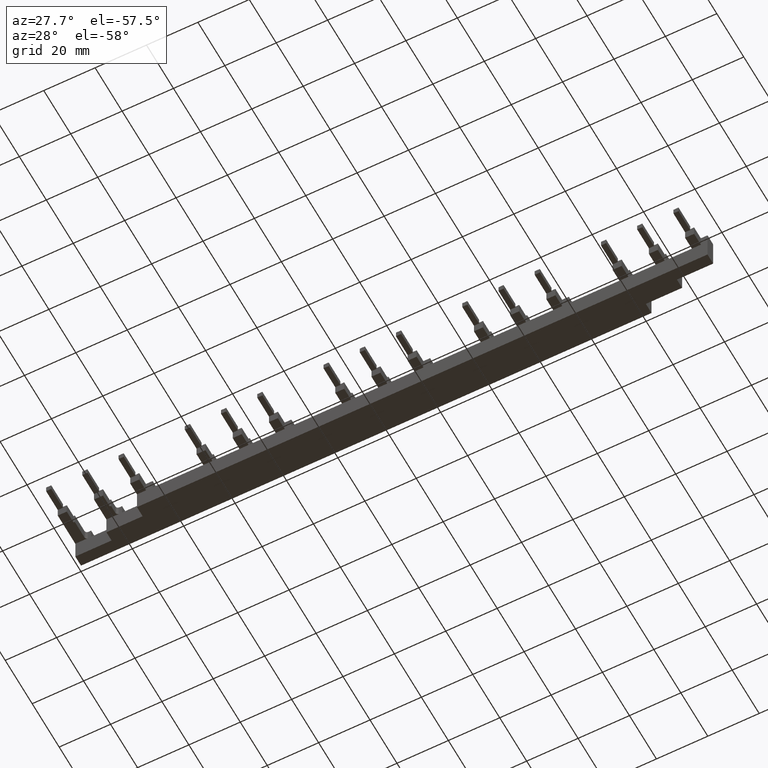
[diagram: clean part render]
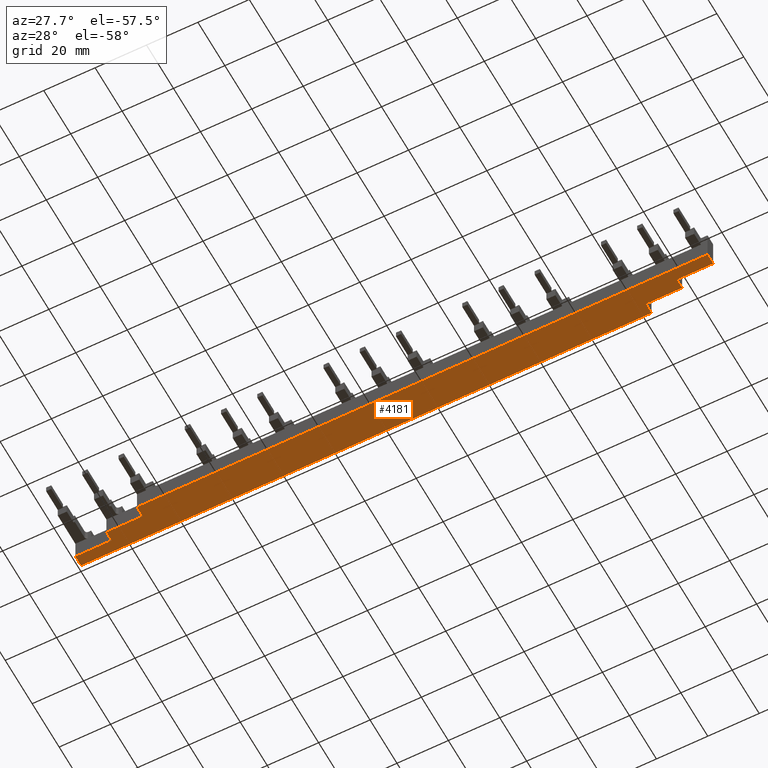
[diagram: same view with one face highlighted and labeled with its STEP entity id]
A machine part, auxiliary view. The second image highlights one B-rep face of the part: STEP entity #4181.
In plain terms, the highlighted planar face has unit normal (0, 0, 1).
Its self-contained STEP definition (entity closure, byte-faithful):
#3876=CARTESIAN_POINT('',(28.199999999999594,-8.000000000007264,100.00000000000003));
#3877=VERTEX_POINT('',#3876);
#3884=CARTESIAN_POINT('',(28.199999999999594,-12.200000000000049,100.00000000000003));
#3885=VERTEX_POINT('',#3884);
#3886=CARTESIAN_POINT('',(28.199999999999594,-12.200000000000049,100.00000000000003));
#3887=DIRECTION('',(0.0,1.0,0.0));
#3888=VECTOR('',#3887,4.199999999992786);
#3889=LINE('',#3886,#3888);
#3890=EDGE_CURVE('',#3885,#3877,#3889,.T.);
#3911=CARTESIAN_POINT('',(250.29999999999967,-12.200000000000049,100.0));
#3912=VERTEX_POINT('',#3911);
#3913=CARTESIAN_POINT('',(250.29999999999967,-12.200000000000049,100.0));
#3914=DIRECTION('',(-1.0,0.0,0.0));
#3915=VECTOR('',#3914,222.10000000000008);
#3916=LINE('',#3913,#3915);
#3917=EDGE_CURVE('',#3912,#3885,#3916,.T.);
#3996=CARTESIAN_POINT('',(250.29999999999967,-8.000000000007931,100.0));
#3997=VERTEX_POINT('',#3996);
#4004=CARTESIAN_POINT('',(236.19999999999976,-8.000000000007931,100.0));
#4005=VERTEX_POINT('',#4004);
#4006=CARTESIAN_POINT('',(236.19999999999976,-8.000000000007931,100.0));
#4007=DIRECTION('',(1.0,0.0,0.0));
#4008=VECTOR('',#4007,14.099999999999909);
#4009=LINE('',#4006,#4008);
#4010=EDGE_CURVE('',#4005,#3997,#4009,.T.);
#4031=CARTESIAN_POINT('',(-9.035849E-031,-4.200000000007777,100.00000000000006));
#4032=VERTEX_POINT('',#4031);
#4039=CARTESIAN_POINT('',(14.099999999999683,-4.200000000007777,100.00000000000003));
#4040=VERTEX_POINT('',#4039);
#4041=CARTESIAN_POINT('',(14.099999999999689,-4.200000000007777,100.00000000000003));
#4042=DIRECTION('',(-1.0,0.0,0.0));
#4043=VECTOR('',#4042,14.099999999999689);
#4044=LINE('',#4041,#4043);
#4045=EDGE_CURVE('',#4040,#4032,#4044,.T.);
#4068=CARTESIAN_POINT('',(236.19999999999976,-4.200000000009028,100.0));
#4069=VERTEX_POINT('',#4068);
#4076=CARTESIAN_POINT('',(222.09999999999962,-4.200000000009028,100.00000000000001));
#4077=VERTEX_POINT('',#4076);
#4078=CARTESIAN_POINT('',(222.0999999999996,-4.200000000009028,100.0));
#4079=DIRECTION('',(1.0,0.0,0.0));
#4080=VECTOR('',#4079,14.100000000000136);
#4081=LINE('',#4078,#4080);
#4082=EDGE_CURVE('',#4077,#4069,#4081,.T.);
#4102=CARTESIAN_POINT('',(250.29999999999967,-8.000000000007933,100.0));
#4103=DIRECTION('',(0.0,-1.0,0.0));
#4104=VECTOR('',#4103,4.199999999992116);
#4105=LINE('',#4102,#4104);
#4106=EDGE_CURVE('',#3997,#3912,#4105,.T.);
#4119=CARTESIAN_POINT('',(236.19999999999976,-4.200000000009028,100.0));
#4120=DIRECTION('',(0.0,-1.0,0.0));
#4121=VECTOR('',#4120,3.799999999998904);
#4122=LINE('',#4119,#4121);
#4123=EDGE_CURVE('',#4069,#4005,#4122,.T.);
#4131=CARTESIAN_POINT('',(61.049999999999855,-2.100000000003889,100.00000000000003));
#4132=DIRECTION('',(0.0,0.0,1.0));
#4133=DIRECTION('',(1.0,0.0,0.0));
#4134=AXIS2_PLACEMENT_3D('',#4131,#4132,#4133);
#4135=PLANE('',#4134);
#4136=ORIENTED_EDGE('',*,*,#4045,.T.);
#4137=CARTESIAN_POINT('',(-2.841462E-030,0.0,100.00000000000001));
#4138=VERTEX_POINT('',#4137);
#4139=CARTESIAN_POINT('',(-2.771484E-030,-4.200000000007777,100.00000000000001));
#4140=DIRECTION('',(0.0,1.0,0.0));
#4141=VECTOR('',#4140,4.200000000007777);
#4142=LINE('',#4139,#4141);
#4143=EDGE_CURVE('',#4032,#4138,#4142,.T.);
#4144=ORIENTED_EDGE('',*,*,#4143,.T.);
#4145=CARTESIAN_POINT('',(222.09999999999962,-1.421085E-014,100.0));
#4146=VERTEX_POINT('',#4145);
#4147=CARTESIAN_POINT('',(0.0,-1.421085E-014,100.00000000000003));
#4148=DIRECTION('',(1.0,0.0,0.0));
#4149=VECTOR('',#4148,222.09999999999962);
#4150=LINE('',#4147,#4149);
#4151=EDGE_CURVE('',#4138,#4146,#4150,.T.);
#4152=ORIENTED_EDGE('',*,*,#4151,.T.);
#4153=CARTESIAN_POINT('',(222.09999999999962,-1.421085E-014,100.00000000000001));
#4154=DIRECTION('',(0.0,-1.0,0.0));
#4155=VECTOR('',#4154,4.200000000009014);
#4156=LINE('',#4153,#4155);
#4157=EDGE_CURVE('',#4146,#4077,#4156,.T.);
#4158=ORIENTED_EDGE('',*,*,#4157,.T.);
#4159=ORIENTED_EDGE('',*,*,#4082,.T.);
#4160=ORIENTED_EDGE('',*,*,#4123,.T.);
#4161=ORIENTED_EDGE('',*,*,#4010,.T.);
#4162=ORIENTED_EDGE('',*,*,#4106,.T.);
#4163=ORIENTED_EDGE('',*,*,#3917,.T.);
#4164=ORIENTED_EDGE('',*,*,#3890,.T.);
#4165=CARTESIAN_POINT('',(14.099999999999683,-8.000000000007264,100.00000000000003));
#4166=VERTEX_POINT('',#4165);
#4167=CARTESIAN_POINT('',(28.199999999999598,-8.000000000007264,100.00000000000003));
#4168=DIRECTION('',(-1.0,0.0,0.0));
#4169=VECTOR('',#4168,14.099999999999916);
#4170=LINE('',#4167,#4169);
#4171=EDGE_CURVE('',#3877,#4166,#4170,.T.);
#4172=ORIENTED_EDGE('',*,*,#4171,.T.);
#4173=CARTESIAN_POINT('',(14.099999999999683,-8.000000000007264,100.00000000000003));
#4174=DIRECTION('',(0.0,1.0,0.0));
#4175=VECTOR('',#4174,3.799999999999487);
#4176=LINE('',#4173,#4175);
#4177=EDGE_CURVE('',#4166,#4040,#4176,.T.);
#4178=ORIENTED_EDGE('',*,*,#4177,.T.);
#4179=EDGE_LOOP('',(#4136,#4144,#4152,#4158,#4159,#4160,#4161,#4162,#4163,#4164,#4172,#4178));
#4180=FACE_OUTER_BOUND('',#4179,.T.);
#4181=ADVANCED_FACE('',(#4180),#4135,.F.);